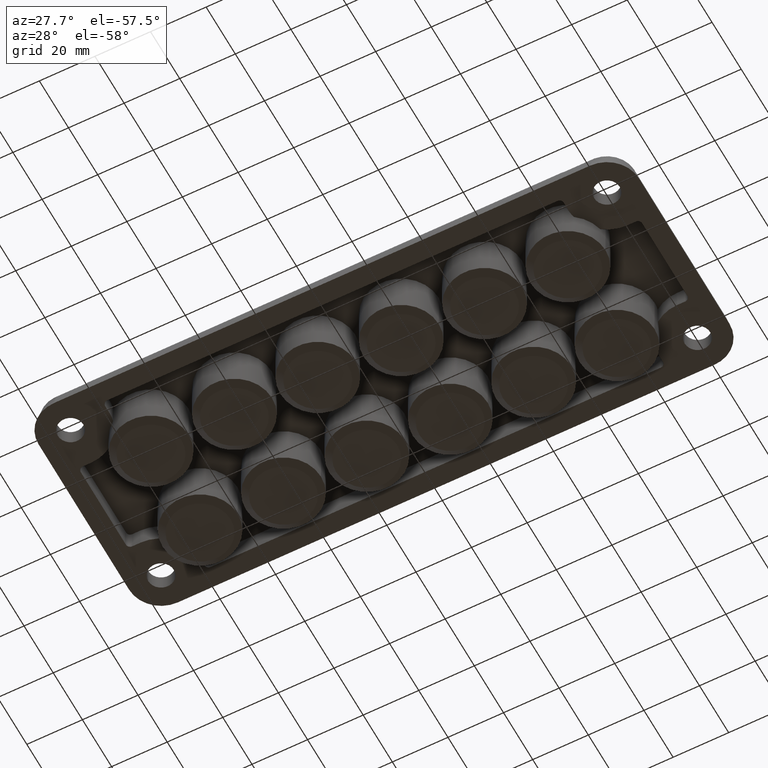
[diagram: clean part render]
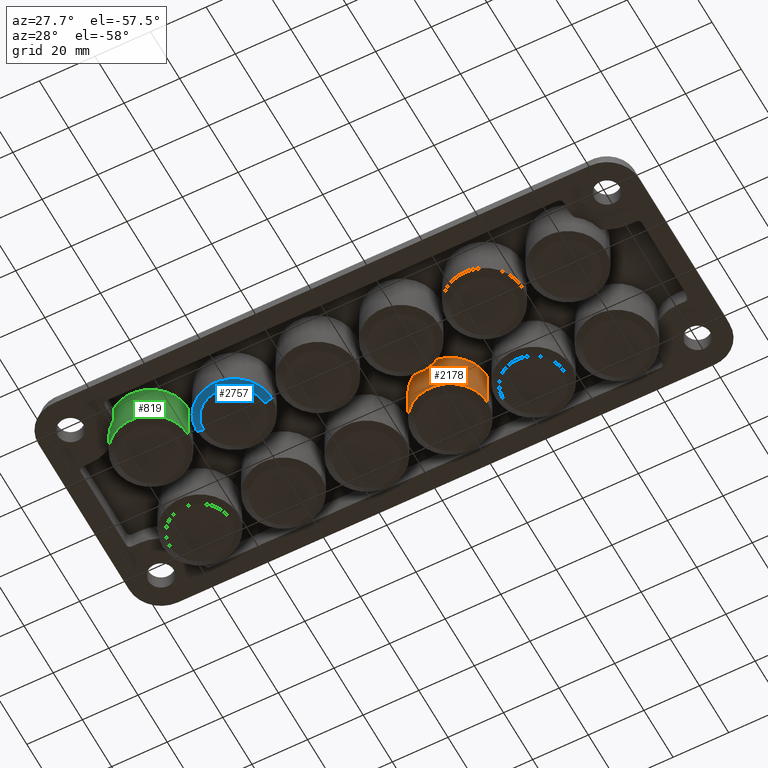
[diagram: same view with three faces highlighted in distinct colors, each labeled with its STEP entity id]
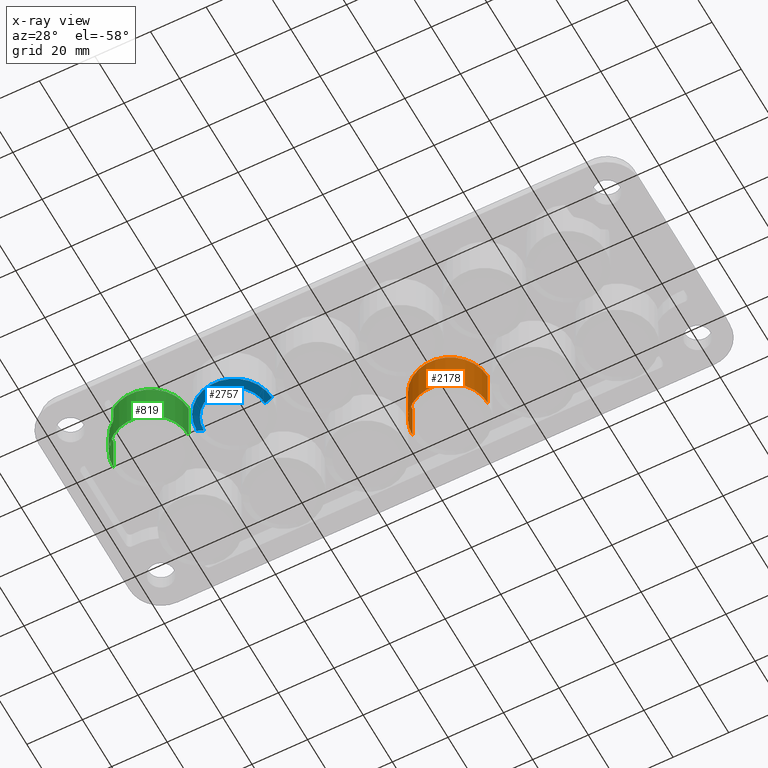
[diagram: x-ray of the same camera — body ghosted, the three highlighted faces saturated]
A machine part, auxiliary view with three faces highlighted in distinct colors.
The next image is the same camera in x-ray (body ghosted, the three faces saturated) — at least one of them is partly hidden behind the body in this view.
Their STEP definitions:

[orange] entity #2178 — the highlighted cylindrical surface (partial cylindrical patch) has radius 13.5 mm, axis along (0, 0, 1).
#27 = DIRECTION ( 'NONE',  ( 1.000000000000000000, 0.0000000000000000000, 0.0000000000000000000 ) ) ;
#144 = ORIENTED_EDGE ( 'NONE', *, *, #2073, .F. ) ;
#413 = CARTESIAN_POINT ( 'NONE',  ( 14.99999999999999800, 16.80000000000000100, -10.00000000000000000 ) ) ;
#466 = EDGE_CURVE ( 'NONE', #3190, #3255, #3432, .T. ) ;
#853 = CARTESIAN_POINT ( 'NONE',  ( 1.499999999999997800, 16.80000000000000100, 7.000000000000000900 ) ) ;
#901 = ORIENTED_EDGE ( 'NONE', *, *, #1954, .T. ) ;
#1029 = FACE_OUTER_BOUND ( 'NONE', #1158, .T. ) ;
#1095 = ORIENTED_EDGE ( 'NONE', *, *, #466, .T. ) ;
#1109 = CARTESIAN_POINT ( 'NONE',  ( 1.499999999999997800, 16.80000000000000100, -10.00000000000000000 ) ) ;
#1158 = EDGE_LOOP ( 'NONE', ( #144, #901, #3773, #1095 ) ) ;
#1291 = VECTOR ( 'NONE', #4044, 1000.000000000000000 ) ;
#1357 = DIRECTION ( 'NONE',  ( 1.000000000000000000, 0.0000000000000000000, 0.0000000000000000000 ) ) ;
#1480 = DIRECTION ( 'NONE',  ( -1.000000000000000000, 0.0000000000000000000, 0.0000000000000000000 ) ) ;
#1562 = CARTESIAN_POINT ( 'NONE',  ( 28.49999999999999600, 16.80000000000000100, 7.000000000000000900 ) ) ;
#1655 = CARTESIAN_POINT ( 'NONE',  ( 1.499999999999997800, 16.80000000000000100, -8.556624327025920400 ) ) ;
#1774 = CARTESIAN_POINT ( 'NONE',  ( 14.99999999999999800, 16.80000000000000100, -8.556624327025920400 ) ) ;
#1827 = DIRECTION ( 'NONE',  ( -0.0000000000000000000, -0.0000000000000000000, -1.000000000000000000 ) ) ;
#1943 = DIRECTION ( 'NONE',  ( 0.0000000000000000000, 0.0000000000000000000, 1.000000000000000000 ) ) ;
#1954 = EDGE_CURVE ( 'NONE', #4098, #4774, #4290, .T. ) ;
#2073 = EDGE_CURVE ( 'NONE', #4098, #3255, #3022, .T. ) ;
#2178 = ADVANCED_FACE ( 'NONE', ( #1029 ), #3742, .T. ) ;
#2489 = AXIS2_PLACEMENT_3D ( 'NONE', #1774, #4427, #1357 ) ;
#3002 = EDGE_CURVE ( 'NONE', #4774, #3190, #4850, .T. ) ;
#3022 = LINE ( 'NONE', #1109, #4586 ) ;
#3190 = VERTEX_POINT ( 'NONE', #1562 ) ;
#3255 = VERTEX_POINT ( 'NONE', #853 ) ;
#3432 = CIRCLE ( 'NONE', #4688, 13.50000000000000000 ) ;
#3742 = CYLINDRICAL_SURFACE ( 'NONE', #3955, 13.50000000000000000 ) ;
#3773 = ORIENTED_EDGE ( 'NONE', *, *, #3002, .T. ) ;
#3955 = AXIS2_PLACEMENT_3D ( 'NONE', #413, #1943, #27 ) ;
#4044 = DIRECTION ( 'NONE',  ( 0.0000000000000000000, 0.0000000000000000000, 1.000000000000000000 ) ) ;
#4098 = VERTEX_POINT ( 'NONE', #1655 ) ;
#4290 = CIRCLE ( 'NONE', #2489, 13.50000000000000000 ) ;
#4427 = DIRECTION ( 'NONE',  ( -0.0000000000000000000, -0.0000000000000000000, 1.000000000000000000 ) ) ;
#4457 = DIRECTION ( 'NONE',  ( 0.0000000000000000000, 0.0000000000000000000, 1.000000000000000000 ) ) ;
#4479 = CARTESIAN_POINT ( 'NONE',  ( 14.99999999999999800, 16.80000000000000100, 7.000000000000000900 ) ) ;
#4586 = VECTOR ( 'NONE', #4457, 1000.000000000000000 ) ;
#4684 = CARTESIAN_POINT ( 'NONE',  ( 28.49999999999999600, 16.80000000000000100, -8.556624327025920400 ) ) ;
#4688 = AXIS2_PLACEMENT_3D ( 'NONE', #4479, #1827, #1480 ) ;
#4774 = VERTEX_POINT ( 'NONE', #4684 ) ;
#4823 = CARTESIAN_POINT ( 'NONE',  ( 28.49999999999999600, 16.80000000000000100, -10.00000000000000000 ) ) ;
#4850 = LINE ( 'NONE', #4823, #1291 ) ;

[blue] entity #2757 — the highlighted conical surface has half-angle 60 deg.
#60 = DIRECTION ( 'NONE',  ( 1.000000000000000000, 0.0000000000000000000, 0.0000000000000000000 ) ) ;
#169 = CARTESIAN_POINT ( 'NONE',  ( -31.50000000000000000, -16.80000000000001100, -8.556624327025934600 ) ) ;
#232 = CARTESIAN_POINT ( 'NONE',  ( -34.00000000000001400, -16.80000000000001100, -10.00000000000000000 ) ) ;
#250 = VERTEX_POINT ( 'NONE', #232 ) ;
#457 = CARTESIAN_POINT ( 'NONE',  ( -45.00000000000000000, -16.80000000000001100, -8.556624327025934600 ) ) ;
#620 = EDGE_LOOP ( 'NONE', ( #3263, #2955, #3795, #3443 ) ) ;
#867 = CARTESIAN_POINT ( 'NONE',  ( -45.00000000000000000, -16.80000000000001100, -8.556624327025934600 ) ) ;
#1190 = DIRECTION ( 'NONE',  ( 1.000000000000000000, 0.0000000000000000000, 0.0000000000000000000 ) ) ;
#1260 = VERTEX_POINT ( 'NONE', #169 ) ;
#1578 = CARTESIAN_POINT ( 'NONE',  ( -55.99999999999997900, -16.80000000000001100, -10.00000000000000000 ) ) ;
#1699 = VECTOR ( 'NONE', #2685, 1000.000000000000200 ) ;
#1708 = EDGE_CURVE ( 'NONE', #3781, #4050, #3628, .T. ) ;
#2251 = AXIS2_PLACEMENT_3D ( 'NONE', #3473, #2306, #1190 ) ;
#2306 = DIRECTION ( 'NONE',  ( -0.0000000000000000000, -0.0000000000000000000, -1.000000000000000000 ) ) ;
#2353 = CONICAL_SURFACE ( 'NONE', #3637, 13.49999999999999800, 1.047197551196600500 ) ;
#2468 = LINE ( 'NONE', #3014, #3763 ) ;
#2685 = DIRECTION ( 'NONE',  ( -0.8660254037844400400, 1.060575238724908500E-016, 0.4999999999999975600 ) ) ;
#2743 = CARTESIAN_POINT ( 'NONE',  ( -58.50000000000000000, -16.80000000000001100, -8.556624327025934600 ) ) ;
#2757 = ADVANCED_FACE ( 'NONE', ( #3347 ), #2353, .T. ) ;
#2955 = ORIENTED_EDGE ( 'NONE', *, *, #3223, .F. ) ;
#3014 = CARTESIAN_POINT ( 'NONE',  ( -31.50000000000000000, -16.80000000000001100, -8.556624327025934600 ) ) ;
#3100 = DIRECTION ( 'NONE',  ( -0.0000000000000000000, -0.0000000000000000000, 1.000000000000000000 ) ) ;
#3127 = DIRECTION ( 'NONE',  ( -0.0000000000000000000, -0.0000000000000000000, 1.000000000000000000 ) ) ;
#3223 = EDGE_CURVE ( 'NONE', #250, #3781, #3644, .T. ) ;
#3263 = ORIENTED_EDGE ( 'NONE', *, *, #1708, .F. ) ;
#3347 = FACE_OUTER_BOUND ( 'NONE', #620, .T. ) ;
#3443 = ORIENTED_EDGE ( 'NONE', *, *, #3815, .F. ) ;
#3473 = CARTESIAN_POINT ( 'NONE',  ( -45.00000000000000000, -16.80000000000001100, -10.00000000000000000 ) ) ;
#3502 = DIRECTION ( 'NONE',  ( 1.000000000000000000, 0.0000000000000000000, 0.0000000000000000000 ) ) ;
#3628 = LINE ( 'NONE', #4604, #1699 ) ;
#3637 = AXIS2_PLACEMENT_3D ( 'NONE', #457, #3127, #3502 ) ;
#3644 = CIRCLE ( 'NONE', #2251, 10.99999999999998200 ) ;
#3763 = VECTOR ( 'NONE', #4514, 1000.000000000000200 ) ;
#3781 = VERTEX_POINT ( 'NONE', #1578 ) ;
#3795 = ORIENTED_EDGE ( 'NONE', *, *, #4441, .T. ) ;
#3815 = EDGE_CURVE ( 'NONE', #4050, #1260, #4119, .T. ) ;
#4050 = VERTEX_POINT ( 'NONE', #2743 ) ;
#4119 = CIRCLE ( 'NONE', #4507, 13.49999999999999800 ) ;
#4441 = EDGE_CURVE ( 'NONE', #250, #1260, #2468, .T. ) ;
#4507 = AXIS2_PLACEMENT_3D ( 'NONE', #867, #3100, #60 ) ;
#4514 = DIRECTION ( 'NONE',  ( 0.8660254037844400400, 0.0000000000000000000, 0.4999999999999975600 ) ) ;
#4604 = CARTESIAN_POINT ( 'NONE',  ( -58.50000000000000000, -16.80000000000001100, -8.556624327025934600 ) ) ;

[green] entity #819 — the highlighted cylindrical surface (partial cylindrical patch) has radius 13.5 mm, axis along (0, 0, 1).
#45 = B_SPLINE_CURVE_WITH_KNOTS ( 'NONE', 3,
 ( #3458, #1556, #3823, #2731 ),
 .UNSPECIFIED., .F., .F.,
 ( 4, 4 ),
 ( 2.000709964877167000E-007, 0.007002619940388579400 ),
 .UNSPECIFIED. ) ;
#72 = ORIENTED_EDGE ( 'NONE', *, *, #1721, .F. ) ;
#100 = LINE ( 'NONE', #3119, #2694 ) ;
#122 = CARTESIAN_POINT ( 'NONE',  ( -88.17506420610409600, -19.74409292737762600, 0.0000000000000000000 ) ) ;
#327 = DIRECTION ( 'NONE',  ( -1.000000000000000000, 0.0000000000000000000, 0.0000000000000000000 ) ) ;
#365 = EDGE_LOOP ( 'NONE', ( #1099, #4203, #986, #2250, #72, #1856, #2887, #801 ) ) ;
#461 = CIRCLE ( 'NONE', #3471, 13.49999999999999800 ) ;
#477 = CARTESIAN_POINT ( 'NONE',  ( -75.00000000000000000, -16.80000000000001100, -10.00000000000000000 ) ) ;
#702 = VECTOR ( 'NONE', #1010, 1000.000000000000000 ) ;
#801 = ORIENTED_EDGE ( 'NONE', *, *, #3158, .T. ) ;
#819 = ADVANCED_FACE ( 'NONE', ( #1366 ), #3240, .T. ) ;
#986 = ORIENTED_EDGE ( 'NONE', *, *, #4067, .T. ) ;
#1010 = DIRECTION ( 'NONE',  ( 0.0000000000000000000, 0.0000000000000000000, 1.000000000000000000 ) ) ;
#1099 = ORIENTED_EDGE ( 'NONE', *, *, #2595, .F. ) ;
#1131 = CARTESIAN_POINT ( 'NONE',  ( -88.21398201733843800, -19.56417786067699200, 7.000000000000000900 ) ) ;
#1150 = EDGE_CURVE ( 'NONE', #3178, #4473, #4063, .T. ) ;
#1306 = CARTESIAN_POINT ( 'NONE',  ( -82.72944743145390600, -27.86822670550213800, 7.000000000000000900 ) ) ;
#1366 = FACE_OUTER_BOUND ( 'NONE', #365, .T. ) ;
#1496 = CARTESIAN_POINT ( 'NONE',  ( -75.00000000000000000, -16.80000000000001100, 7.000000000000000900 ) ) ;
#1544 = DIRECTION ( 'NONE',  ( -0.0000000000000000000, -0.0000000000000000000, -1.000000000000000000 ) ) ;
#1556 = CARTESIAN_POINT ( 'NONE',  ( -82.82915123782166200, -27.79810246038072900, 2.333311488559743500 ) ) ;
#1640 = VERTEX_POINT ( 'NONE', #2246 ) ;
#1721 = EDGE_CURVE ( 'NONE', #1958, #4156, #45, .T. ) ;
#1731 = DIRECTION ( 'NONE',  ( -0.0000000000000000000, -0.0000000000000000000, 1.000000000000000000 ) ) ;
#1756 = AXIS2_PLACEMENT_3D ( 'NONE', #3261, #1731, #2861 ) ;
#1856 = ORIENTED_EDGE ( 'NONE', *, *, #2938, .T. ) ;
#1904 = CARTESIAN_POINT ( 'NONE',  ( -75.00000000000000000, -16.80000000000001100, 7.000000000000000900 ) ) ;
#1958 = VERTEX_POINT ( 'NONE', #4001 ) ;
#2011 = CARTESIAN_POINT ( 'NONE',  ( -88.18862532407051400, -19.68340578049690800, 2.333311488559744400 ) ) ;
#2029 = DIRECTION ( 'NONE',  ( 1.000000000000000000, 0.0000000000000000000, 0.0000000000000000000 ) ) ;
#2114 = CIRCLE ( 'NONE', #1756, 13.49999999999999800 ) ;
#2150 = CIRCLE ( 'NONE', #3535, 13.49999999999999800 ) ;
#2192 = EDGE_CURVE ( 'NONE', #4661, #4156, #2150, .T. ) ;
#2195 = CARTESIAN_POINT ( 'NONE',  ( -61.50000000000000000, -16.80000000000001100, -8.556624327025934600 ) ) ;
#2246 = CARTESIAN_POINT ( 'NONE',  ( -88.50000000000000000, -16.80000000000001100, -8.556624327025934600 ) ) ;
#2250 = ORIENTED_EDGE ( 'NONE', *, *, #2192, .T. ) ;
#2595 = EDGE_CURVE ( 'NONE', #1640, #4234, #4617, .T. ) ;
#2682 = VERTEX_POINT ( 'NONE', #2195 ) ;
#2694 = VECTOR ( 'NONE', #3173, 1000.000000000000000 ) ;
#2731 = CARTESIAN_POINT ( 'NONE',  ( -82.72944743145390600, -27.86822670550213800, 7.000000000000000900 ) ) ;
#2861 = DIRECTION ( 'NONE',  ( 1.000000000000000000, 0.0000000000000000000, 0.0000000000000000000 ) ) ;
#2887 = ORIENTED_EDGE ( 'NONE', *, *, #1150, .F. ) ;
#2938 = EDGE_CURVE ( 'NONE', #1958, #4473, #461, .T. ) ;
#2998 = CARTESIAN_POINT ( 'NONE',  ( -88.17506420610409600, -19.74409292737762600, 0.0000000000000000000 ) ) ;
#3119 = CARTESIAN_POINT ( 'NONE',  ( -61.50000000000000000, -16.80000000000001100, -10.00000000000000000 ) ) ;
#3122 = DIRECTION ( 'NONE',  ( 0.0000000000000000000, 0.0000000000000000000, 1.000000000000000000 ) ) ;
#3155 = AXIS2_PLACEMENT_3D ( 'NONE', #1904, #1544, #4563 ) ;
#3158 = EDGE_CURVE ( 'NONE', #3178, #4234, #3824, .T. ) ;
#3173 = DIRECTION ( 'NONE',  ( 0.0000000000000000000, 0.0000000000000000000, 1.000000000000000000 ) ) ;
#3178 = VERTEX_POINT ( 'NONE', #1131 ) ;
#3240 = CYLINDRICAL_SURFACE ( 'NONE', #3339, 13.49999999999999800 ) ;
#3251 = CARTESIAN_POINT ( 'NONE',  ( -88.50000000000000000, -16.80000000000001100, -10.00000000000000000 ) ) ;
#3261 = CARTESIAN_POINT ( 'NONE',  ( -75.00000000000000000, -16.80000000000001100, -8.556624327025934600 ) ) ;
#3305 = DIRECTION ( 'NONE',  ( -0.0000000000000000000, -0.0000000000000000000, -1.000000000000000000 ) ) ;
#3339 = AXIS2_PLACEMENT_3D ( 'NONE', #477, #3122, #2029 ) ;
#3458 = CARTESIAN_POINT ( 'NONE',  ( -82.87964365212543800, -27.76180714642980300, 0.0000000000000000000 ) ) ;
#3471 = AXIS2_PLACEMENT_3D ( 'NONE', #4299, #3305, #327 ) ;
#3535 = AXIS2_PLACEMENT_3D ( 'NONE', #1496, #4916, #4134 ) ;
#3823 = CARTESIAN_POINT ( 'NONE',  ( -82.77910260504624800, -27.83355023345347600, 4.666645924343311200 ) ) ;
#3824 = CIRCLE ( 'NONE', #3155, 13.49999999999999800 ) ;
#3948 = CARTESIAN_POINT ( 'NONE',  ( -88.20158113911610100, -19.62345949524910800, 4.666645924343312000 ) ) ;
#4001 = CARTESIAN_POINT ( 'NONE',  ( -82.87964365212543800, -27.76180714642980300, 0.0000000000000000000 ) ) ;
#4063 = B_SPLINE_CURVE_WITH_KNOTS ( 'NONE', 3,
 ( #4687, #3948, #2011, #122 ),
 .UNSPECIFIED., .F., .F.,
 ( 4, 4 ),
 ( 2.000673458101543700E-007, 0.007002619936737903200 ),
 .UNSPECIFIED. ) ;
#4067 = EDGE_CURVE ( 'NONE', #2682, #4661, #100, .T. ) ;
#4134 = DIRECTION ( 'NONE',  ( -1.000000000000000000, 0.0000000000000000000, 0.0000000000000000000 ) ) ;
#4156 = VERTEX_POINT ( 'NONE', #1306 ) ;
#4203 = ORIENTED_EDGE ( 'NONE', *, *, #4861, .T. ) ;
#4234 = VERTEX_POINT ( 'NONE', #4529 ) ;
#4299 = CARTESIAN_POINT ( 'NONE',  ( -75.00000000000000000, -16.80000000000001100, 0.0000000000000000000 ) ) ;
#4473 = VERTEX_POINT ( 'NONE', #2998 ) ;
#4529 = CARTESIAN_POINT ( 'NONE',  ( -88.50000000000000000, -16.80000000000001100, 7.000000000000000900 ) ) ;
#4559 = CARTESIAN_POINT ( 'NONE',  ( -61.50000000000000000, -16.80000000000001100, 7.000000000000000900 ) ) ;
#4563 = DIRECTION ( 'NONE',  ( -1.000000000000000000, 0.0000000000000000000, 0.0000000000000000000 ) ) ;
#4617 = LINE ( 'NONE', #3251, #702 ) ;
#4661 = VERTEX_POINT ( 'NONE', #4559 ) ;
#4687 = CARTESIAN_POINT ( 'NONE',  ( -88.21398201733843800, -19.56417786067699200, 7.000000000000000900 ) ) ;
#4861 = EDGE_CURVE ( 'NONE', #1640, #2682, #2114, .T. ) ;
#4916 = DIRECTION ( 'NONE',  ( -0.0000000000000000000, -0.0000000000000000000, -1.000000000000000000 ) ) ;